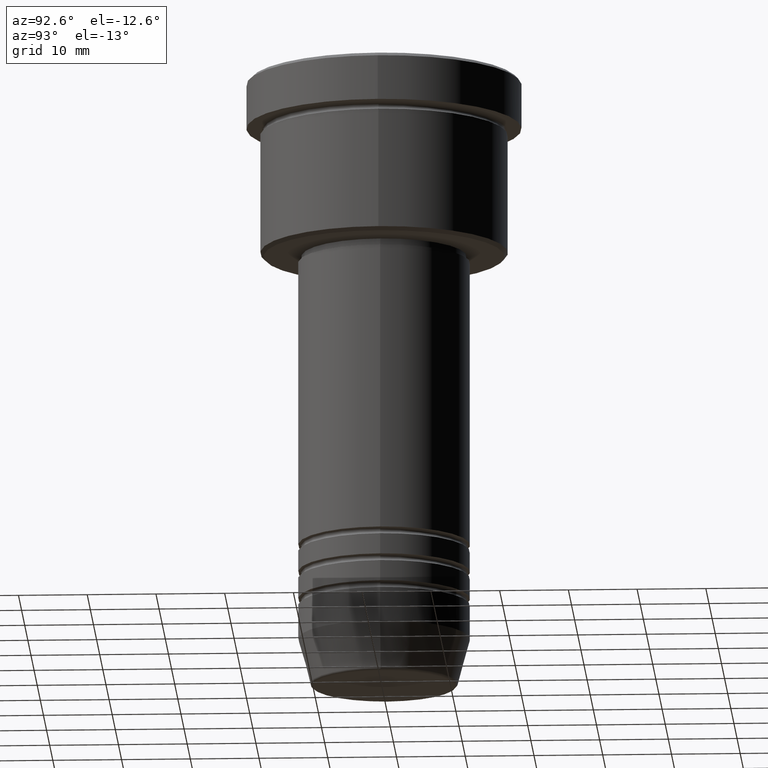
[diagram: clean part render]
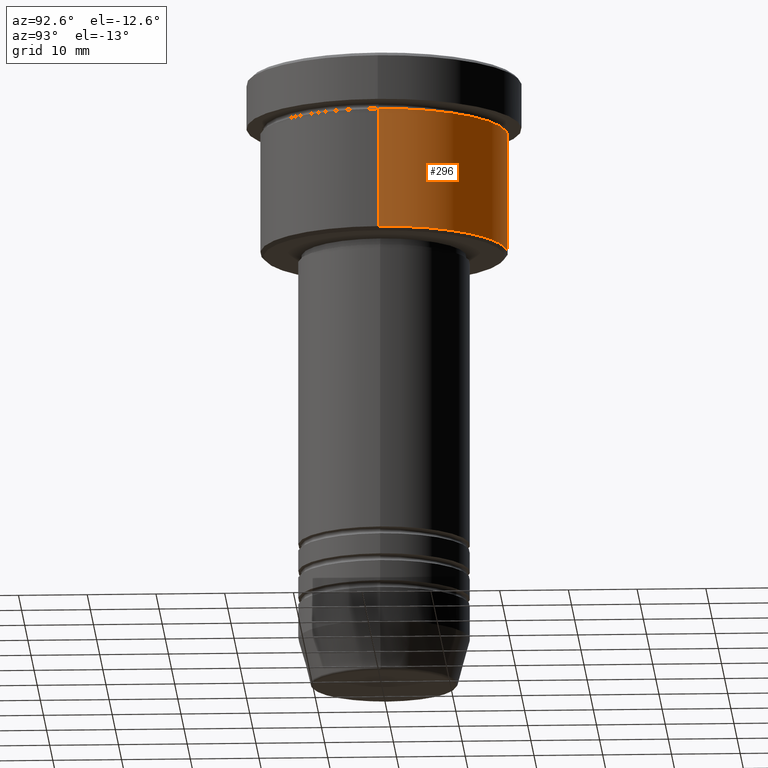
[diagram: same view with one face highlighted and labeled with its STEP entity id]
A machine part, auxiliary view. The second image highlights one B-rep face of the part: STEP entity #296.
In plain terms, the highlighted cylindrical surface (partial cylindrical patch) has radius 18 mm, axis along (-0, -0, 1).
Its self-contained STEP definition (entity closure, byte-faithful):
#95 = EDGE_CURVE ( 'NONE', #895, #800, #498, .T. ) ;
#118 = VERTEX_POINT ( 'NONE', #371 ) ;
#205 = VECTOR ( 'NONE', #967, 1000.000000000000000 ) ;
#225 = VERTEX_POINT ( 'NONE', #482 ) ;
#231 = DIRECTION ( 'NONE',  ( -0.000000000000000000, -0.000000000000000000, 1.000000000000000000 ) ) ;
#296 = ADVANCED_FACE ( 'NONE', ( #687 ), #334, .T. ) ;
#327 = DIRECTION ( 'NONE',  ( -0.000000000000000000, -0.000000000000000000, 1.000000000000000000 ) ) ;
#334 = CYLINDRICAL_SURFACE ( 'NONE', #765, 18.00000000000000000 ) ;
#371 = CARTESIAN_POINT ( 'NONE',  ( 18.00000000000000000, 0.000000000000000000, -7.999999999999996447 ) ) ;
#377 = AXIS2_PLACEMENT_3D ( 'NONE', #778, #327, #410 ) ;
#410 = DIRECTION ( 'NONE',  ( 1.000000000000000000, 0.000000000000000000, 0.000000000000000000 ) ) ;
#426 = DIRECTION ( 'NONE',  ( 1.000000000000000000, 0.000000000000000000, 0.000000000000000000 ) ) ;
#433 = AXIS2_PLACEMENT_3D ( 'NONE', #888, #438, #794 ) ;
#438 = DIRECTION ( 'NONE',  ( -0.000000000000000000, -0.000000000000000000, 1.000000000000000000 ) ) ;
#482 = CARTESIAN_POINT ( 'NONE',  ( 18.00000000000000000, 0.000000000000000000, -25.50000000000001066 ) ) ;
#488 = CARTESIAN_POINT ( 'NONE',  ( -18.00000000000000000, 2.204364238465235428E-15, -7.999999999999996447 ) ) ;
#498 = LINE ( 'NONE', #1116, #560 ) ;
#560 = VECTOR ( 'NONE', #1107, 1000.000000000000000 ) ;
#687 = FACE_OUTER_BOUND ( 'NONE', #704, .T. ) ;
#689 = LINE ( 'NONE', #1052, #205 ) ;
#704 = EDGE_LOOP ( 'NONE', ( #1114, #910, #1154, #885 ) ) ;
#765 = AXIS2_PLACEMENT_3D ( 'NONE', #874, #231, #426 ) ;
#778 = CARTESIAN_POINT ( 'NONE',  ( 0.000000000000000000, 0.000000000000000000, -7.999999999999996447 ) ) ;
#794 = DIRECTION ( 'NONE',  ( -1.000000000000000000, 0.000000000000000000, 0.000000000000000000 ) ) ;
#800 = VERTEX_POINT ( 'NONE', #488 ) ;
#845 = CIRCLE ( 'NONE', #433, 18.00000000000000000 ) ;
#874 = CARTESIAN_POINT ( 'NONE',  ( 0.000000000000000000, 0.000000000000000000, 0.000000000000000000 ) ) ;
#885 = ORIENTED_EDGE ( 'NONE', *, *, #914, .F. ) ;
#888 = CARTESIAN_POINT ( 'NONE',  ( 0.000000000000000000, 0.000000000000000000, -25.50000000000001066 ) ) ;
#895 = VERTEX_POINT ( 'NONE', #1046 ) ;
#906 = EDGE_CURVE ( 'NONE', #118, #800, #961, .T. ) ;
#910 = ORIENTED_EDGE ( 'NONE', *, *, #95, .T. ) ;
#914 = EDGE_CURVE ( 'NONE', #225, #118, #689, .T. ) ;
#961 = CIRCLE ( 'NONE', #377, 18.00000000000000000 ) ;
#967 = DIRECTION ( 'NONE',  ( -0.000000000000000000, -0.000000000000000000, 1.000000000000000000 ) ) ;
#1023 = EDGE_CURVE ( 'NONE', #225, #895, #845, .T. ) ;
#1046 = CARTESIAN_POINT ( 'NONE',  ( -18.00000000000000000, 2.204364238465235428E-15, -25.50000000000001066 ) ) ;
#1052 = CARTESIAN_POINT ( 'NONE',  ( 18.00000000000000000, 0.000000000000000000, 0.000000000000000000 ) ) ;
#1107 = DIRECTION ( 'NONE',  ( -0.000000000000000000, -0.000000000000000000, 1.000000000000000000 ) ) ;
#1114 = ORIENTED_EDGE ( 'NONE', *, *, #1023, .T. ) ;
#1116 = CARTESIAN_POINT ( 'NONE',  ( -18.00000000000000000, 2.204364238465235428E-15, 0.000000000000000000 ) ) ;
#1154 = ORIENTED_EDGE ( 'NONE', *, *, #906, .F. ) ;